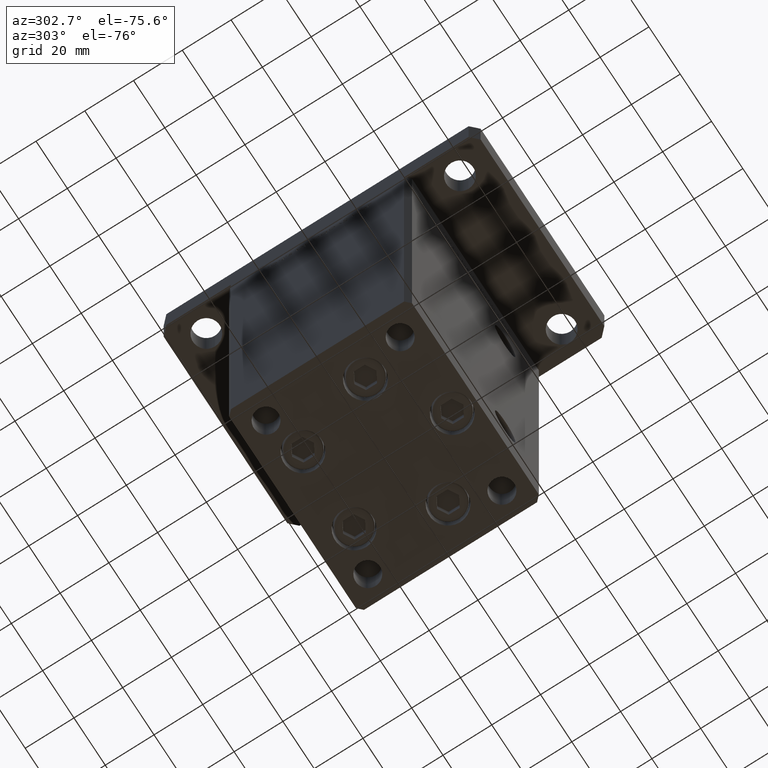
[diagram: clean part render]
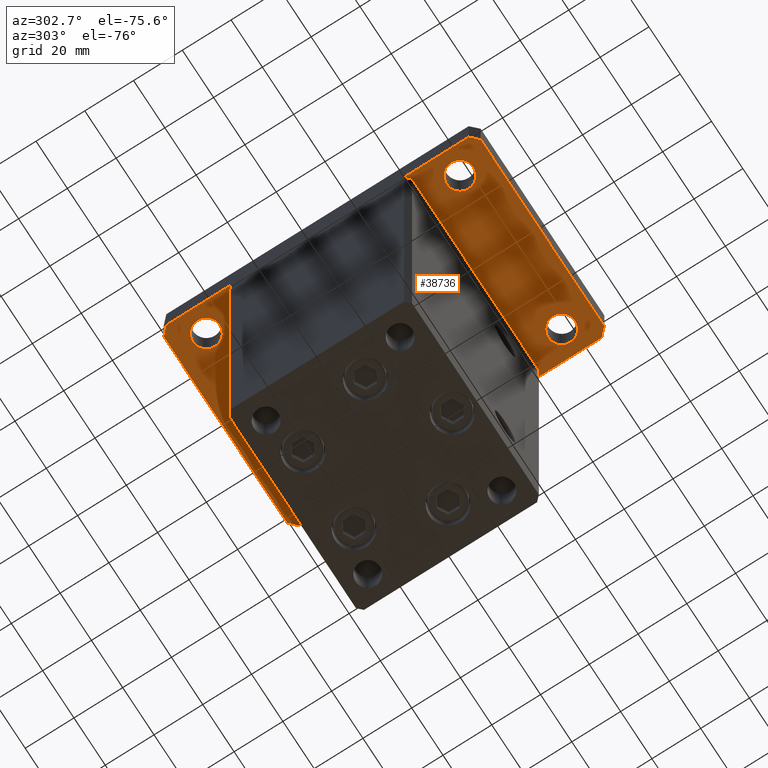
[diagram: same view with one face highlighted and labeled with its STEP entity id]
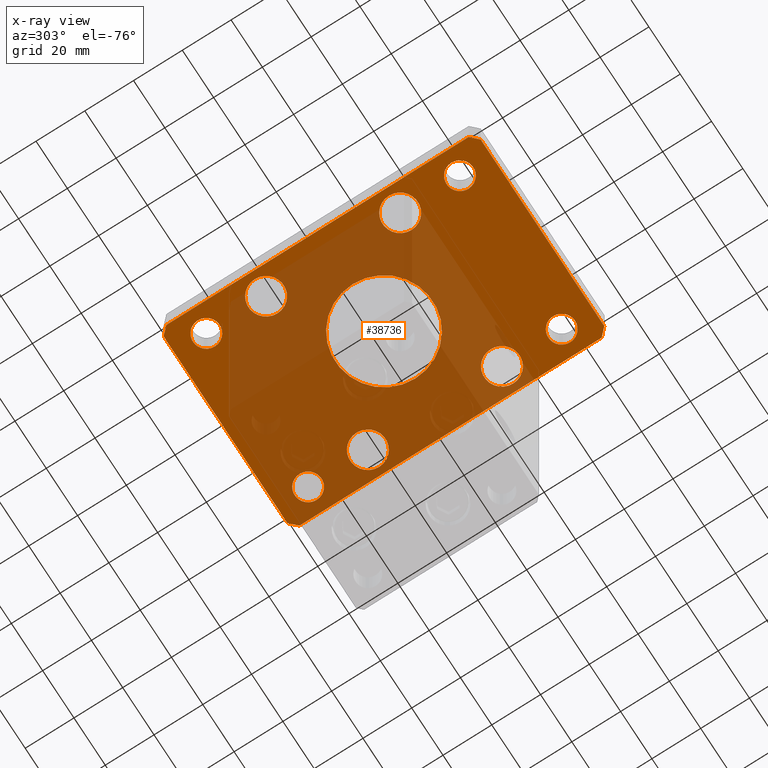
[diagram: x-ray of the same camera — body ghosted, the highlighted face saturated]
A machine part, auxiliary view. The second image highlights one B-rep face of the part: STEP entity #38736.
The next image is the same camera in x-ray: the body ghosted, the highlighted face saturated — about 61% of this face is hidden behind the body in this view.
In plain terms, the highlighted planar face has unit normal (0, 0, 1).
Its self-contained STEP definition (entity closure, byte-faithful):
#400 = FACE_BOUND ( 'NONE', #36252, .T. ) ;
#447 = CARTESIAN_POINT ( 'NONE',  ( -27.00000000000000711, 52.00000000000000000, 0.000000000000000000 ) ) ;
#993 = DIRECTION ( 'NONE',  ( 0.000000000000000000, 0.000000000000000000, 1.000000000000000000 ) ) ;
#1259 = LINE ( 'NONE', #34588, #36271 ) ;
#1726 = CARTESIAN_POINT ( 'NONE',  ( 27.00000000000001421, 51.99999999999999289, 0.000000000000000000 ) ) ;
#1832 = DIRECTION ( 'NONE',  ( 2.238352872228137677E-16, -1.000000000000000000, 0.000000000000000000 ) ) ;
#2103 = DIRECTION ( 'NONE',  ( -1.000000000000000000, 0.000000000000000000, 0.000000000000000000 ) ) ;
#2290 = CARTESIAN_POINT ( 'NONE',  ( 32.50000000000000000, 27.50000000000000000, 0.000000000000000000 ) ) ;
#2998 = CARTESIAN_POINT ( 'NONE',  ( 42.50000000000000000, 62.00000000000000711, 0.000000000000000000 ) ) ;
#3113 = EDGE_CURVE ( 'NONE', #3257, #40571, #15711, .T. ) ;
#3241 = ORIENTED_EDGE ( 'NONE', *, *, #3620, .T. ) ;
#3257 = VERTEX_POINT ( 'NONE', #447 ) ;
#3620 = EDGE_CURVE ( 'NONE', #40571, #3257, #45164, .T. ) ;
#3625 = EDGE_LOOP ( 'NONE', ( #50271, #35020 ) ) ;
#3769 = ORIENTED_EDGE ( 'NONE', *, *, #3113, .T. ) ;
#3901 = EDGE_CURVE ( 'NONE', #41452, #11109, #5382, .T. ) ;
#3922 = ORIENTED_EDGE ( 'NONE', *, *, #19013, .F. ) ;
#4117 = ORIENTED_EDGE ( 'NONE', *, *, #50609, .T. ) ;
#4124 = ORIENTED_EDGE ( 'NONE', *, *, #28381, .T. ) ;
#4438 = EDGE_LOOP ( 'NONE', ( #26514, #41512 ) ) ;
#4672 = CARTESIAN_POINT ( 'NONE',  ( -32.50000000000000000, -27.50000000000000000, 0.000000000000000000 ) ) ;
#5181 = CARTESIAN_POINT ( 'NONE',  ( 32.50000000000000000, -27.50000000000000000, 0.000000000000000000 ) ) ;
#5382 = CIRCLE ( 'NONE', #21845, 7.249999999999999112 ) ;
#5524 = CARTESIAN_POINT ( 'NONE',  ( -39.50000000000003553, 65.00000000000000000, 0.000000000000000000 ) ) ;
#5604 = VECTOR ( 'NONE', #40263, 1000.000000000000000 ) ;
#5650 = DIRECTION ( 'NONE',  ( -1.000000000000000000, 0.000000000000000000, 0.000000000000000000 ) ) ;
#5793 = DIRECTION ( 'NONE',  ( 1.000000000000000000, 1.405345600791337191E-15, 0.000000000000000000 ) ) ;
#5845 = CIRCLE ( 'NONE', #42215, 5.499999999999994671 ) ;
#6062 = CARTESIAN_POINT ( 'NONE',  ( -39.50000000000000000, -65.00000000000000000, 0.000000000000000000 ) ) ;
#6949 = CARTESIAN_POINT ( 'NONE',  ( -32.50000000000000000, -27.50000000000000000, 0.000000000000000000 ) ) ;
#7048 = VECTOR ( 'NONE', #8051, 1000.000000000000000 ) ;
#7092 = ORIENTED_EDGE ( 'NONE', *, *, #22488, .T. ) ;
#7360 = CARTESIAN_POINT ( 'NONE',  ( -39.50000000000000000, -65.00000000000000000, 0.000000000000000000 ) ) ;
#7518 = VERTEX_POINT ( 'NONE', #20371 ) ;
#8051 = DIRECTION ( 'NONE',  ( 0.7071067811865483499, -0.7071067811865466846, 0.000000000000000000 ) ) ;
#8389 = ORIENTED_EDGE ( 'NONE', *, *, #21735, .T. ) ;
#8579 = CIRCLE ( 'NONE', #38886, 7.249999999999999112 ) ;
#8796 = PLANE ( 'NONE',  #42521 ) ;
#8986 = VERTEX_POINT ( 'NONE', #7360 ) ;
#9055 = CIRCLE ( 'NONE', #43696, 7.249999999999999112 ) ;
#9297 = DIRECTION ( 'NONE',  ( 0.000000000000000000, 0.000000000000000000, 1.000000000000000000 ) ) ;
#9497 = ORIENTED_EDGE ( 'NONE', *, *, #25112, .T. ) ;
#9702 = DIRECTION ( 'NONE',  ( 1.000000000000000000, 0.000000000000000000, 0.000000000000000000 ) ) ;
#10202 = EDGE_LOOP ( 'NONE', ( #11536, #21178 ) ) ;
#10279 = DIRECTION ( 'NONE',  ( 1.000000000000000000, 0.000000000000000000, 0.000000000000000000 ) ) ;
#10523 = CARTESIAN_POINT ( 'NONE',  ( 39.50000000000002842, 65.00000000000002842, 0.000000000000000000 ) ) ;
#10782 = EDGE_LOOP ( 'NONE', ( #27980, #30371, #3922, #42415, #23664, #46473, #25257, #47195 ) ) ;
#11109 = VERTEX_POINT ( 'NONE', #39223 ) ;
#11531 = CIRCLE ( 'NONE', #46173, 20.00000000000000000 ) ;
#11536 = ORIENTED_EDGE ( 'NONE', *, *, #33637, .T. ) ;
#11643 = CIRCLE ( 'NONE', #40195, 7.249999999999999112 ) ;
#12032 = CIRCLE ( 'NONE', #50119, 7.249999999999999112 ) ;
#12049 = CARTESIAN_POINT ( 'NONE',  ( -39.75000000000000711, 27.50000000000000000, 0.000000000000000000 ) ) ;
#12583 = EDGE_LOOP ( 'NONE', ( #8389, #13941 ) ) ;
#12877 = FACE_BOUND ( 'NONE', #27773, .T. ) ;
#12920 = EDGE_CURVE ( 'NONE', #19347, #53611, #52378, .T. ) ;
#13201 = VERTEX_POINT ( 'NONE', #39909 ) ;
#13275 = AXIS2_PLACEMENT_3D ( 'NONE', #29326, #49656, #9702 ) ;
#13349 = DIRECTION ( 'NONE',  ( 0.000000000000000000, 0.000000000000000000, 1.000000000000000000 ) ) ;
#13471 = ORIENTED_EDGE ( 'NONE', *, *, #47369, .T. ) ;
#13588 = ORIENTED_EDGE ( 'NONE', *, *, #12920, .F. ) ;
#13757 = CARTESIAN_POINT ( 'NONE',  ( 32.50000000000000000, -27.50000000000000000, 0.000000000000000000 ) ) ;
#13941 = ORIENTED_EDGE ( 'NONE', *, *, #49882, .T. ) ;
#14391 = DIRECTION ( 'NONE',  ( 1.000000000000000000, 0.000000000000000000, 0.000000000000000000 ) ) ;
#14418 = CARTESIAN_POINT ( 'NONE',  ( 26.99999999999998579, -52.00000000000000711, 0.000000000000000000 ) ) ;
#14443 = VERTEX_POINT ( 'NONE', #51108 ) ;
#14517 = VECTOR ( 'NONE', #35056, 1000.000000000000000 ) ;
#15711 = CIRCLE ( 'NONE', #25249, 5.499999999999994671 ) ;
#15732 = CARTESIAN_POINT ( 'NONE',  ( -39.75000000000000000, -27.50000000000000000, 0.000000000000000000 ) ) ;
#15807 = DIRECTION ( 'NONE',  ( -1.000000000000000000, -3.513364001978340512E-16, 0.000000000000000000 ) ) ;
#15872 = DIRECTION ( 'NONE',  ( 1.000000000000000000, 0.000000000000000000, 0.000000000000000000 ) ) ;
#16129 = VERTEX_POINT ( 'NONE', #16643 ) ;
#16643 = CARTESIAN_POINT ( 'NONE',  ( -37.99999999999997868, -52.00000000000000711, 0.000000000000000000 ) ) ;
#16946 = FACE_BOUND ( 'NONE', #4438, .T. ) ;
#18613 = CARTESIAN_POINT ( 'NONE',  ( 42.50000000000000000, -61.99999999999988631, 0.000000000000000000 ) ) ;
#18625 = DIRECTION ( 'NONE',  ( 0.000000000000000000, 0.000000000000000000, 1.000000000000000000 ) ) ;
#18913 = CARTESIAN_POINT ( 'NONE',  ( 37.99999999999997868, -52.00000000000000711, 0.000000000000000000 ) ) ;
#18977 = CARTESIAN_POINT ( 'NONE',  ( -25.25000000000000000, -27.50000000000000000, 0.000000000000000000 ) ) ;
#19013 = EDGE_CURVE ( 'NONE', #22206, #26782, #22449, .T. ) ;
#19029 = CARTESIAN_POINT ( 'NONE',  ( -38.00000000000000000, 52.00000000000000000, 0.000000000000000000 ) ) ;
#19275 = DIRECTION ( 'NONE',  ( 0.000000000000000000, 0.000000000000000000, 1.000000000000000000 ) ) ;
#19347 = VERTEX_POINT ( 'NONE', #22126 ) ;
#19422 = DIRECTION ( 'NONE',  ( 1.000000000000000000, 0.000000000000000000, 0.000000000000000000 ) ) ;
#19475 = AXIS2_PLACEMENT_3D ( 'NONE', #47380, #39244, #2103 ) ;
#19507 = VECTOR ( 'NONE', #29097, 1000.000000000000000 ) ;
#19547 = VECTOR ( 'NONE', #1832, 1000.000000000000000 ) ;
#19702 = VECTOR ( 'NONE', #5793, 1000.000000000000000 ) ;
#19825 = DIRECTION ( 'NONE',  ( 0.000000000000000000, 0.000000000000000000, 1.000000000000000000 ) ) ;
#20371 = CARTESIAN_POINT ( 'NONE',  ( -26.99999999999998579, -52.00000000000000711, 0.000000000000000000 ) ) ;
#20429 = CARTESIAN_POINT ( 'NONE',  ( 42.50000000000000000, 62.00000000000000711, 0.000000000000000000 ) ) ;
#20474 = FACE_BOUND ( 'NONE', #12583, .T. ) ;
#21178 = ORIENTED_EDGE ( 'NONE', *, *, #47700, .T. ) ;
#21192 = ORIENTED_EDGE ( 'NONE', *, *, #44099, .F. ) ;
#21369 = CIRCLE ( 'NONE', #36047, 5.499999999999991118 ) ;
#21735 = EDGE_CURVE ( 'NONE', #44858, #32431, #21369, .T. ) ;
#21803 = AXIS2_PLACEMENT_3D ( 'NONE', #43461, #22066, #27204 ) ;
#21845 = AXIS2_PLACEMENT_3D ( 'NONE', #5181, #38792, #14391 ) ;
#22066 = DIRECTION ( 'NONE',  ( 0.000000000000000000, 0.000000000000000000, 1.000000000000000000 ) ) ;
#22126 = CARTESIAN_POINT ( 'NONE',  ( 20.00000000000000000, 2.449293598294706513E-15, 0.000000000000000000 ) ) ;
#22206 = VERTEX_POINT ( 'NONE', #41137 ) ;
#22311 = ORIENTED_EDGE ( 'NONE', *, *, #31538, .T. ) ;
#22407 = AXIS2_PLACEMENT_3D ( 'NONE', #28450, #44985, #32768 ) ;
#22449 = LINE ( 'NONE', #43850, #19547 ) ;
#22488 = EDGE_CURVE ( 'NONE', #23659, #46775, #52524, .T. ) ;
#22680 = DIRECTION ( 'NONE',  ( 0.000000000000000000, 0.000000000000000000, 1.000000000000000000 ) ) ;
#22925 = CIRCLE ( 'NONE', #36738, 7.249999999999999112 ) ;
#23001 = AXIS2_PLACEMENT_3D ( 'NONE', #39216, #18625, #35136 ) ;
#23044 = CARTESIAN_POINT ( 'NONE',  ( -20.00000000000000000, 0.000000000000000000, 0.000000000000000000 ) ) ;
#23659 = VERTEX_POINT ( 'NONE', #18977 ) ;
#23664 = ORIENTED_EDGE ( 'NONE', *, *, #52220, .F. ) ;
#23766 = DIRECTION ( 'NONE',  ( 1.000000000000000000, 0.000000000000000000, 0.000000000000000000 ) ) ;
#24538 = FACE_BOUND ( 'NONE', #25329, .T. ) ;
#24573 = EDGE_CURVE ( 'NONE', #37916, #22206, #26679, .T. ) ;
#24725 = EDGE_CURVE ( 'NONE', #8986, #28767, #42939, .T. ) ;
#25112 = EDGE_CURVE ( 'NONE', #16129, #7518, #5845, .T. ) ;
#25249 = AXIS2_PLACEMENT_3D ( 'NONE', #53603, #45176, #41106 ) ;
#25257 = ORIENTED_EDGE ( 'NONE', *, *, #51664, .F. ) ;
#25329 = EDGE_LOOP ( 'NONE', ( #21192, #13588 ) ) ;
#25686 = VERTEX_POINT ( 'NONE', #33400 ) ;
#25869 = VERTEX_POINT ( 'NONE', #2998 ) ;
#26257 = DIRECTION ( 'NONE',  ( 0.000000000000000000, 0.000000000000000000, -1.000000000000000000 ) ) ;
#26514 = ORIENTED_EDGE ( 'NONE', *, *, #48346, .T. ) ;
#26679 = LINE ( 'NONE', #5524, #14517 ) ;
#26782 = VERTEX_POINT ( 'NONE', #41280 ) ;
#26810 = VERTEX_POINT ( 'NONE', #14418 ) ;
#27204 = DIRECTION ( 'NONE',  ( 1.000000000000000000, 0.000000000000000000, 0.000000000000000000 ) ) ;
#27294 = CARTESIAN_POINT ( 'NONE',  ( 39.75000000000000000, 27.50000000000000000, 0.000000000000000000 ) ) ;
#27315 = CARTESIAN_POINT ( 'NONE',  ( 39.50000000000001421, -64.99999999999988631, 0.000000000000000000 ) ) ;
#27682 = CARTESIAN_POINT ( 'NONE',  ( 32.50000000000000000, 51.99999999999999289, 0.000000000000000000 ) ) ;
#27773 = EDGE_LOOP ( 'NONE', ( #4124, #13471 ) ) ;
#27980 = ORIENTED_EDGE ( 'NONE', *, *, #24725, .F. ) ;
#27982 = CIRCLE ( 'NONE', #13275, 5.499999999999998224 ) ;
#28259 = EDGE_LOOP ( 'NONE', ( #3241, #3769 ) ) ;
#28381 = EDGE_CURVE ( 'NONE', #43446, #25686, #12032, .T. ) ;
#28450 = CARTESIAN_POINT ( 'NONE',  ( -32.49999999999997868, -52.00000000000000711, 0.000000000000000000 ) ) ;
#28590 = CARTESIAN_POINT ( 'NONE',  ( -39.50000000000003553, 65.00000000000000000, 0.000000000000000000 ) ) ;
#28645 = VERTEX_POINT ( 'NONE', #18913 ) ;
#28654 = LINE ( 'NONE', #36780, #7048 ) ;
#28744 = DIRECTION ( 'NONE',  ( 1.000000000000000000, 0.000000000000000000, 0.000000000000000000 ) ) ;
#28767 = VERTEX_POINT ( 'NONE', #27315 ) ;
#29097 = DIRECTION ( 'NONE',  ( -0.7071067811865417996, 0.7071067811865532349, 0.000000000000000000 ) ) ;
#29326 = CARTESIAN_POINT ( 'NONE',  ( 32.49999999999997868, -52.00000000000000711, 0.000000000000000000 ) ) ;
#29412 = FACE_BOUND ( 'NONE', #3625, .T. ) ;
#29738 = CARTESIAN_POINT ( 'NONE',  ( -32.49999999999997868, -52.00000000000000711, 0.000000000000000000 ) ) ;
#29879 = AXIS2_PLACEMENT_3D ( 'NONE', #13757, #51159, #23766 ) ;
#30371 = ORIENTED_EDGE ( 'NONE', *, *, #35645, .F. ) ;
#31004 = DIRECTION ( 'NONE',  ( 1.000000000000000000, 0.000000000000000000, -0.000000000000000000 ) ) ;
#31538 = EDGE_CURVE ( 'NONE', #7518, #16129, #33648, .T. ) ;
#32431 = VERTEX_POINT ( 'NONE', #52547 ) ;
#32711 = EDGE_CURVE ( 'NONE', #28767, #13201, #1259, .T. ) ;
#32768 = DIRECTION ( 'NONE',  ( 1.000000000000000000, 0.000000000000000000, 0.000000000000000000 ) ) ;
#32867 = LINE ( 'NONE', #52964, #50657 ) ;
#33400 = CARTESIAN_POINT ( 'NONE',  ( -25.25000000000000711, 27.50000000000000000, 0.000000000000000000 ) ) ;
#33637 = EDGE_CURVE ( 'NONE', #14443, #47381, #8579, .T. ) ;
#33648 = CIRCLE ( 'NONE', #22407, 5.499999999999994671 ) ;
#34388 = EDGE_CURVE ( 'NONE', #28645, #26810, #45853, .T. ) ;
#34588 = CARTESIAN_POINT ( 'NONE',  ( 39.50000000000001421, -64.99999999999988631, 0.000000000000000000 ) ) ;
#35020 = ORIENTED_EDGE ( 'NONE', *, *, #34388, .T. ) ;
#35056 = DIRECTION ( 'NONE',  ( -0.7071067811865466846, -0.7071067811865483499, 0.000000000000000000 ) ) ;
#35136 = DIRECTION ( 'NONE',  ( 1.000000000000000000, 0.000000000000000000, 0.000000000000000000 ) ) ;
#35209 = CARTESIAN_POINT ( 'NONE',  ( 32.49999999999997868, -52.00000000000000711, 0.000000000000000000 ) ) ;
#35394 = LINE ( 'NONE', #18613, #5604 ) ;
#35645 = EDGE_CURVE ( 'NONE', #26782, #8986, #28654, .T. ) ;
#36047 = AXIS2_PLACEMENT_3D ( 'NONE', #27682, #19275, #40398 ) ;
#36252 = EDGE_LOOP ( 'NONE', ( #4117, #7092 ) ) ;
#36271 = VECTOR ( 'NONE', #46001, 1000.000000000000114 ) ;
#36738 = AXIS2_PLACEMENT_3D ( 'NONE', #2290, #19825, #28744 ) ;
#36780 = CARTESIAN_POINT ( 'NONE',  ( -42.49999999999999289, -62.00000000000001421, 0.000000000000000000 ) ) ;
#37524 = FACE_BOUND ( 'NONE', #47404, .T. ) ;
#37916 = VERTEX_POINT ( 'NONE', #28590 ) ;
#38736 = ADVANCED_FACE ( 'NONE', ( #24538, #41059, #37524, #20474, #45677, #400, #16946, #50020, #12877, #29412 ), #8796, .F. ) ;
#38792 = DIRECTION ( 'NONE',  ( 0.000000000000000000, 0.000000000000000000, 1.000000000000000000 ) ) ;
#38886 = AXIS2_PLACEMENT_3D ( 'NONE', #43549, #22680, #39213 ) ;
#39213 = DIRECTION ( 'NONE',  ( 1.000000000000000000, 0.000000000000000000, 0.000000000000000000 ) ) ;
#39216 = CARTESIAN_POINT ( 'NONE',  ( 32.50000000000000000, 51.99999999999999289, 0.000000000000000000 ) ) ;
#39223 = CARTESIAN_POINT ( 'NONE',  ( 25.25000000000000000, -27.50000000000000000, 0.000000000000000000 ) ) ;
#39244 = DIRECTION ( 'NONE',  ( 0.000000000000000000, 0.000000000000000000, -1.000000000000000000 ) ) ;
#39909 = CARTESIAN_POINT ( 'NONE',  ( 42.50000000000000000, -61.99999999999988631, 0.000000000000000000 ) ) ;
#40195 = AXIS2_PLACEMENT_3D ( 'NONE', #6949, #44889, #19422 ) ;
#40263 = DIRECTION ( 'NONE',  ( 0.000000000000000000, 1.000000000000000000, 0.000000000000000000 ) ) ;
#40398 = DIRECTION ( 'NONE',  ( 1.000000000000000000, 0.000000000000000000, 0.000000000000000000 ) ) ;
#40571 = VERTEX_POINT ( 'NONE', #19029 ) ;
#41010 = LINE ( 'NONE', #20429, #19507 ) ;
#41059 = FACE_OUTER_BOUND ( 'NONE', #10782, .T. ) ;
#41106 = DIRECTION ( 'NONE',  ( 1.000000000000000000, 0.000000000000000000, 0.000000000000000000 ) ) ;
#41137 = CARTESIAN_POINT ( 'NONE',  ( -42.50000000000002132, 62.00000000000000711, 0.000000000000000000 ) ) ;
#41280 = CARTESIAN_POINT ( 'NONE',  ( -42.49999999999999289, -62.00000000000001421, 0.000000000000000000 ) ) ;
#41452 = VERTEX_POINT ( 'NONE', #43909 ) ;
#41512 = ORIENTED_EDGE ( 'NONE', *, *, #3901, .T. ) ;
#42022 = CIRCLE ( 'NONE', #23001, 5.499999999999991118 ) ;
#42107 = AXIS2_PLACEMENT_3D ( 'NONE', #4672, #13349, #50763 ) ;
#42215 = AXIS2_PLACEMENT_3D ( 'NONE', #29738, #993, #46277 ) ;
#42415 = ORIENTED_EDGE ( 'NONE', *, *, #24573, .F. ) ;
#42521 = AXIS2_PLACEMENT_3D ( 'NONE', #42667, #46487, #31004 ) ;
#42667 = CARTESIAN_POINT ( 'NONE',  ( 0.000000000000000000, 0.000000000000000000, 0.000000000000000000 ) ) ;
#42939 = LINE ( 'NONE', #6062, #19702 ) ;
#43446 = VERTEX_POINT ( 'NONE', #12049 ) ;
#43461 = CARTESIAN_POINT ( 'NONE',  ( -32.50000000000000000, 52.00000000000000000, 0.000000000000000000 ) ) ;
#43549 = CARTESIAN_POINT ( 'NONE',  ( 32.50000000000000000, 27.50000000000000000, 0.000000000000000000 ) ) ;
#43696 = AXIS2_PLACEMENT_3D ( 'NONE', #44625, #53029, #15872 ) ;
#43850 = CARTESIAN_POINT ( 'NONE',  ( -42.50000000000002132, 62.00000000000000711, 0.000000000000000000 ) ) ;
#43909 = CARTESIAN_POINT ( 'NONE',  ( 39.75000000000000000, -27.50000000000000000, 0.000000000000000000 ) ) ;
#44064 = EDGE_CURVE ( 'NONE', #26810, #28645, #27982, .T. ) ;
#44099 = EDGE_CURVE ( 'NONE', #53611, #19347, #11531, .T. ) ;
#44625 = CARTESIAN_POINT ( 'NONE',  ( -32.50000000000000711, 27.50000000000000000, 0.000000000000000000 ) ) ;
#44858 = VERTEX_POINT ( 'NONE', #1726 ) ;
#44889 = DIRECTION ( 'NONE',  ( 0.000000000000000000, 0.000000000000000000, 1.000000000000000000 ) ) ;
#44985 = DIRECTION ( 'NONE',  ( 0.000000000000000000, 0.000000000000000000, 1.000000000000000000 ) ) ;
#45164 = CIRCLE ( 'NONE', #21803, 5.499999999999994671 ) ;
#45176 = DIRECTION ( 'NONE',  ( 0.000000000000000000, 0.000000000000000000, 1.000000000000000000 ) ) ;
#45401 = VERTEX_POINT ( 'NONE', #10523 ) ;
#45677 = FACE_BOUND ( 'NONE', #28259, .T. ) ;
#45853 = CIRCLE ( 'NONE', #50193, 5.499999999999998224 ) ;
#46001 = DIRECTION ( 'NONE',  ( 0.7071067811865459074, 0.7071067811865491270, 0.000000000000000000 ) ) ;
#46125 = CARTESIAN_POINT ( 'NONE',  ( 0.000000000000000000, 0.000000000000000000, 0.000000000000000000 ) ) ;
#46173 = AXIS2_PLACEMENT_3D ( 'NONE', #46125, #26257, #5650 ) ;
#46277 = DIRECTION ( 'NONE',  ( 1.000000000000000000, 0.000000000000000000, 0.000000000000000000 ) ) ;
#46473 = ORIENTED_EDGE ( 'NONE', *, *, #53005, .F. ) ;
#46487 = DIRECTION ( 'NONE',  ( 0.000000000000000000, 0.000000000000000000, 1.000000000000000000 ) ) ;
#46775 = VERTEX_POINT ( 'NONE', #15732 ) ;
#47195 = ORIENTED_EDGE ( 'NONE', *, *, #32711, .F. ) ;
#47369 = EDGE_CURVE ( 'NONE', #25686, #43446, #9055, .T. ) ;
#47380 = CARTESIAN_POINT ( 'NONE',  ( 0.000000000000000000, 0.000000000000000000, 0.000000000000000000 ) ) ;
#47381 = VERTEX_POINT ( 'NONE', #27294 ) ;
#47404 = EDGE_LOOP ( 'NONE', ( #9497, #22311 ) ) ;
#47700 = EDGE_CURVE ( 'NONE', #47381, #14443, #22925, .T. ) ;
#48243 = DIRECTION ( 'NONE',  ( 1.000000000000000000, 0.000000000000000000, 0.000000000000000000 ) ) ;
#48346 = EDGE_CURVE ( 'NONE', #11109, #41452, #51514, .T. ) ;
#49656 = DIRECTION ( 'NONE',  ( 0.000000000000000000, 0.000000000000000000, 1.000000000000000000 ) ) ;
#49882 = EDGE_CURVE ( 'NONE', #32431, #44858, #42022, .T. ) ;
#50020 = FACE_BOUND ( 'NONE', #10202, .T. ) ;
#50119 = AXIS2_PLACEMENT_3D ( 'NONE', #50248, #9297, #48243 ) ;
#50193 = AXIS2_PLACEMENT_3D ( 'NONE', #35209, #50956, #10279 ) ;
#50248 = CARTESIAN_POINT ( 'NONE',  ( -32.50000000000000711, 27.50000000000000000, 0.000000000000000000 ) ) ;
#50271 = ORIENTED_EDGE ( 'NONE', *, *, #44064, .T. ) ;
#50609 = EDGE_CURVE ( 'NONE', #46775, #23659, #11643, .T. ) ;
#50657 = VECTOR ( 'NONE', #15807, 1000.000000000000000 ) ;
#50763 = DIRECTION ( 'NONE',  ( 1.000000000000000000, 0.000000000000000000, 0.000000000000000000 ) ) ;
#50956 = DIRECTION ( 'NONE',  ( 0.000000000000000000, 0.000000000000000000, 1.000000000000000000 ) ) ;
#51108 = CARTESIAN_POINT ( 'NONE',  ( 25.25000000000000000, 27.50000000000000000, 0.000000000000000000 ) ) ;
#51159 = DIRECTION ( 'NONE',  ( 0.000000000000000000, 0.000000000000000000, 1.000000000000000000 ) ) ;
#51514 = CIRCLE ( 'NONE', #29879, 7.249999999999999112 ) ;
#51664 = EDGE_CURVE ( 'NONE', #13201, #25869, #35394, .T. ) ;
#52220 = EDGE_CURVE ( 'NONE', #45401, #37916, #32867, .T. ) ;
#52378 = CIRCLE ( 'NONE', #19475, 20.00000000000000000 ) ;
#52524 = CIRCLE ( 'NONE', #42107, 7.249999999999999112 ) ;
#52547 = CARTESIAN_POINT ( 'NONE',  ( 37.99999999999999289, 51.99999999999999289, 0.000000000000000000 ) ) ;
#52964 = CARTESIAN_POINT ( 'NONE',  ( 39.50000000000002842, 65.00000000000002842, 0.000000000000000000 ) ) ;
#53005 = EDGE_CURVE ( 'NONE', #25869, #45401, #41010, .T. ) ;
#53029 = DIRECTION ( 'NONE',  ( 0.000000000000000000, 0.000000000000000000, 1.000000000000000000 ) ) ;
#53603 = CARTESIAN_POINT ( 'NONE',  ( -32.50000000000000000, 52.00000000000000000, 0.000000000000000000 ) ) ;
#53611 = VERTEX_POINT ( 'NONE', #23044 ) ;